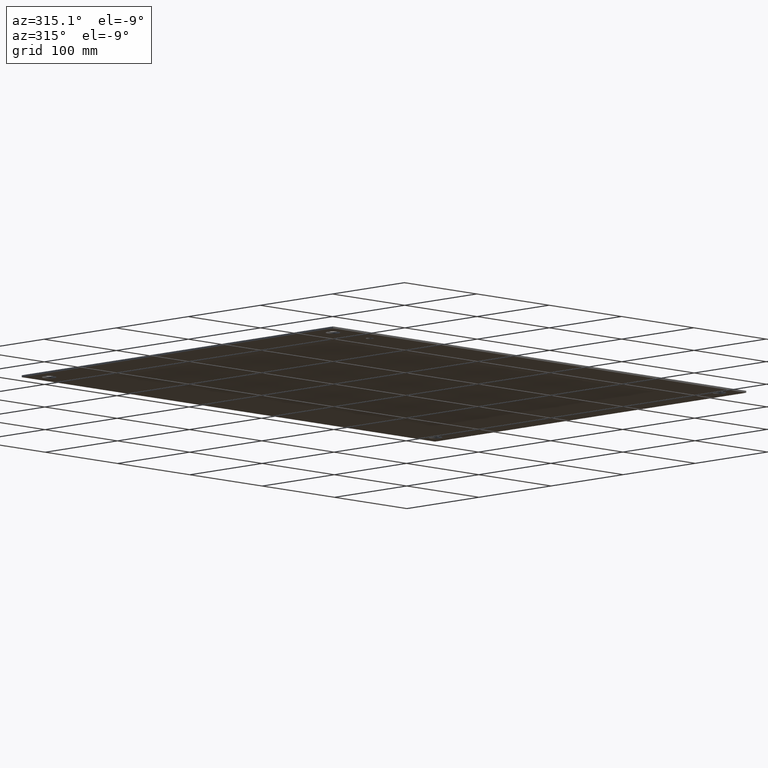
[diagram: clean part render]
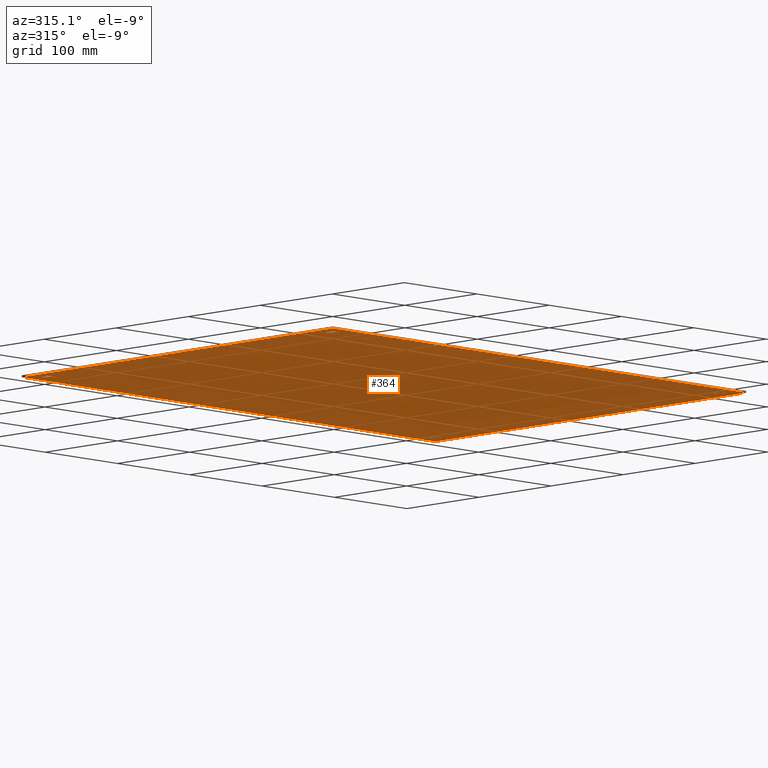
[diagram: same view with one face highlighted and labeled with its STEP entity id]
A machine part, auxiliary view. The second image highlights one B-rep face of the part: STEP entity #364.
In plain terms, the highlighted planar face has unit normal (0, 0, 1).
Its self-contained STEP definition (entity closure, byte-faithful):
#90=CARTESIAN_POINT('',(2.905999999999999,0.749999999999999,0.0));
#91=VERTEX_POINT('',#90);
#92=CARTESIAN_POINT('',(2.749999999999999,0.749999999999999,0.0));
#93=DIRECTION('',(0.0,0.0,1.0));
#94=DIRECTION('',(1.0,0.0,0.0));
#95=AXIS2_PLACEMENT_3D('',#92,#93,#94);
#96=CIRCLE('',#95,0.156);
#97=EDGE_CURVE('',#91,#91,#96,.T.);
#118=CARTESIAN_POINT('',(22.031500000000001,0.750000000000006,0.0));
#119=VERTEX_POINT('',#118);
#120=CARTESIAN_POINT('',(21.75,0.750000000000006,0.0));
#121=DIRECTION('',(0.0,0.0,1.0));
#122=DIRECTION('',(1.0,0.0,0.0));
#123=AXIS2_PLACEMENT_3D('',#120,#121,#122);
#124=CIRCLE('',#123,0.2815);
#125=EDGE_CURVE('',#119,#119,#124,.T.);
#146=CARTESIAN_POINT('',(1.0315,0.75,0.0));
#147=VERTEX_POINT('',#146);
#148=CARTESIAN_POINT('',(0.75,0.75,0.0));
#149=DIRECTION('',(0.0,0.0,1.0));
#150=DIRECTION('',(1.0,0.0,0.0));
#151=AXIS2_PLACEMENT_3D('',#148,#149,#150);
#152=CIRCLE('',#151,0.2815);
#153=EDGE_CURVE('',#147,#147,#152,.T.);
#174=CARTESIAN_POINT('',(22.031499999999994,16.250000000000007,0.0));
#175=VERTEX_POINT('',#174);
#176=CARTESIAN_POINT('',(21.749999999999993,16.250000000000007,0.0));
#177=DIRECTION('',(0.0,0.0,1.0));
#178=DIRECTION('',(1.0,0.0,0.0));
#179=AXIS2_PLACEMENT_3D('',#176,#177,#178);
#180=CIRCLE('',#179,0.2815);
#181=EDGE_CURVE('',#175,#175,#180,.T.);
#202=CARTESIAN_POINT('',(1.031499999999995,16.250000000000004,0.0));
#203=VERTEX_POINT('',#202);
#204=CARTESIAN_POINT('',(0.749999999999995,16.250000000000004,0.0));
#205=DIRECTION('',(0.0,0.0,1.0));
#206=DIRECTION('',(1.0,0.0,0.0));
#207=AXIS2_PLACEMENT_3D('',#204,#205,#206);
#208=CIRCLE('',#207,0.2815);
#209=EDGE_CURVE('',#203,#203,#208,.T.);
#229=CARTESIAN_POINT('',(-5.204749E-015,17.000000000000004,0.0));
#230=VERTEX_POINT('',#229);
#237=CARTESIAN_POINT('',(0.0,0.0,0.0));
#238=VERTEX_POINT('',#237);
#239=CARTESIAN_POINT('',(-5.204749E-015,17.000000000000004,0.0));
#240=DIRECTION('',(0.0,-1.0,0.0));
#241=VECTOR('',#240,17.000000000000004);
#242=LINE('',#239,#241);
#243=EDGE_CURVE('',#230,#238,#242,.T.);
#267=CARTESIAN_POINT('',(22.499999999999996,17.000000000000011,0.0));
#268=VERTEX_POINT('',#267);
#275=CARTESIAN_POINT('',(22.499999999999996,17.000000000000011,0.0));
#276=DIRECTION('',(-1.0,0.0,0.0));
#277=VECTOR('',#276,22.500000000000004);
#278=LINE('',#275,#277);
#279=EDGE_CURVE('',#268,#230,#278,.T.);
#298=CARTESIAN_POINT('',(22.5,0.0,0.0));
#299=VERTEX_POINT('',#298);
#306=CARTESIAN_POINT('',(22.5,0.0,0.0));
#307=DIRECTION('',(0.0,1.0,0.0));
#308=VECTOR('',#307,17.000000000000011);
#309=LINE('',#306,#308);
#310=EDGE_CURVE('',#299,#268,#309,.T.);
#328=CARTESIAN_POINT('',(0.0,0.0,0.0));
#329=DIRECTION('',(1.0,0.0,0.0));
#330=VECTOR('',#329,22.5);
#331=LINE('',#328,#330);
#332=EDGE_CURVE('',#238,#299,#331,.T.);
#338=CARTESIAN_POINT('',(11.249999999999998,8.500000000000005,0.0));
#339=DIRECTION('',(0.0,0.0,1.0));
#340=DIRECTION('',(1.0,0.0,0.0));
#341=AXIS2_PLACEMENT_3D('',#338,#339,#340);
#342=PLANE('',#341);
#343=ORIENTED_EDGE('',*,*,#332,.F.);
#344=ORIENTED_EDGE('',*,*,#243,.F.);
#345=ORIENTED_EDGE('',*,*,#279,.F.);
#346=ORIENTED_EDGE('',*,*,#310,.F.);
#347=EDGE_LOOP('',(#343,#344,#345,#346));
#348=FACE_OUTER_BOUND('',#347,.T.);
#349=ORIENTED_EDGE('',*,*,#97,.T.);
#350=EDGE_LOOP('',(#349));
#351=FACE_BOUND('',#350,.T.);
#352=ORIENTED_EDGE('',*,*,#125,.T.);
#353=EDGE_LOOP('',(#352));
#354=FACE_BOUND('',#353,.T.);
#355=ORIENTED_EDGE('',*,*,#153,.T.);
#356=EDGE_LOOP('',(#355));
#357=FACE_BOUND('',#356,.T.);
#358=ORIENTED_EDGE('',*,*,#181,.T.);
#359=EDGE_LOOP('',(#358));
#360=FACE_BOUND('',#359,.T.);
#361=ORIENTED_EDGE('',*,*,#209,.T.);
#362=EDGE_LOOP('',(#361));
#363=FACE_BOUND('',#362,.T.);
#364=ADVANCED_FACE('',(#348,#351,#354,#357,#360,#363),#342,.F.);